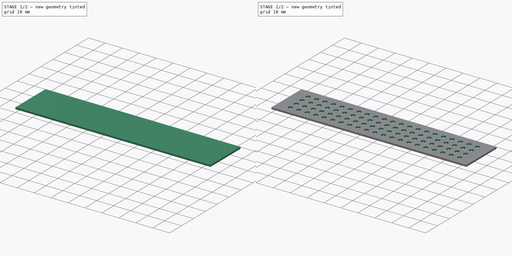
[diagram: build sequence overview — one tinted view per stage of 2, left to right]
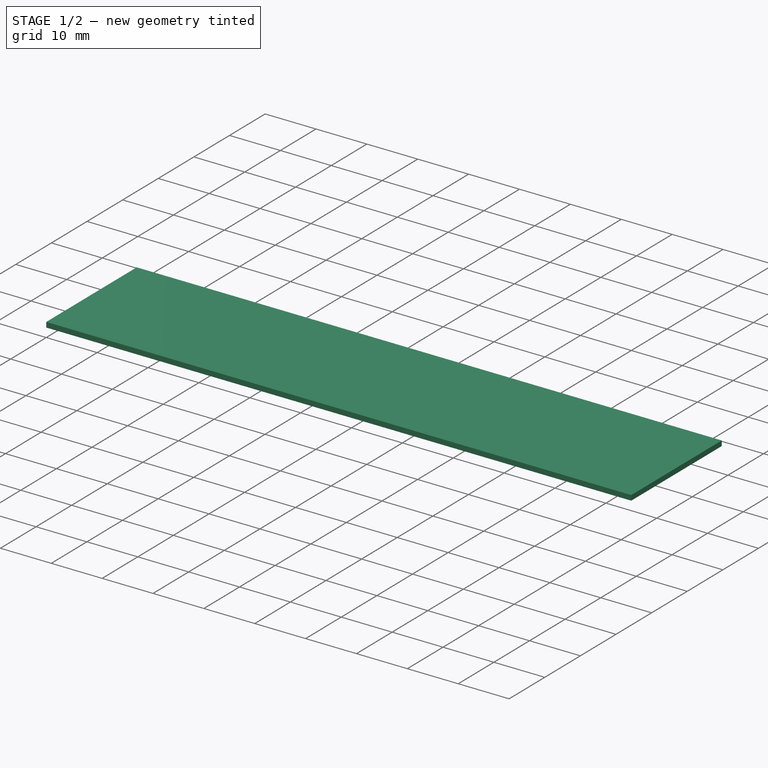
[diagram: stage 1 of 2 — iso view after this stage's code; geometry added in this stage tinted green]
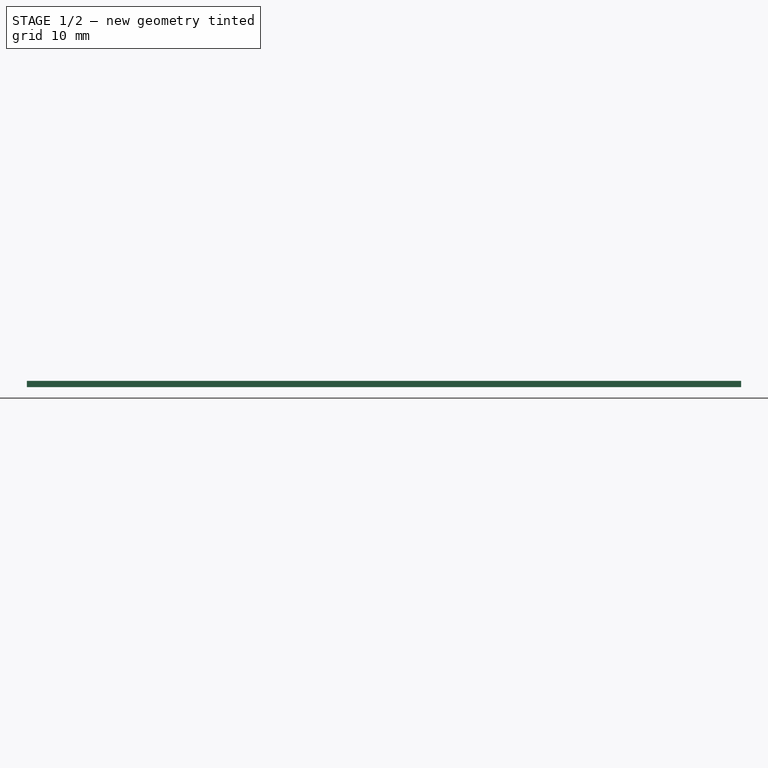
[diagram: stage 1 of 2 — front view after this stage's code; geometry added in this stage tinted green]
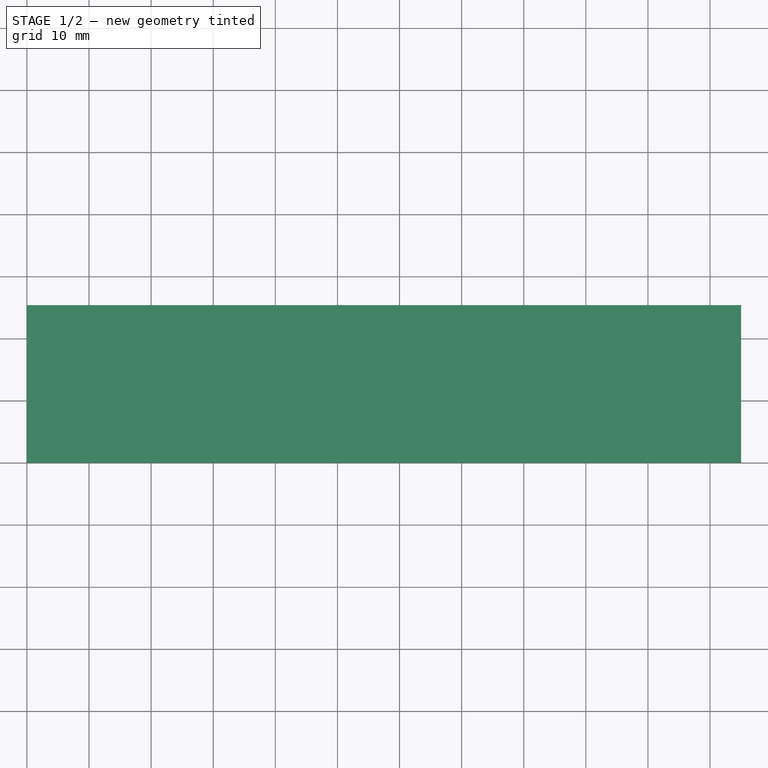
[diagram: stage 1 of 2 — top view after this stage's code; geometry added in this stage tinted green]
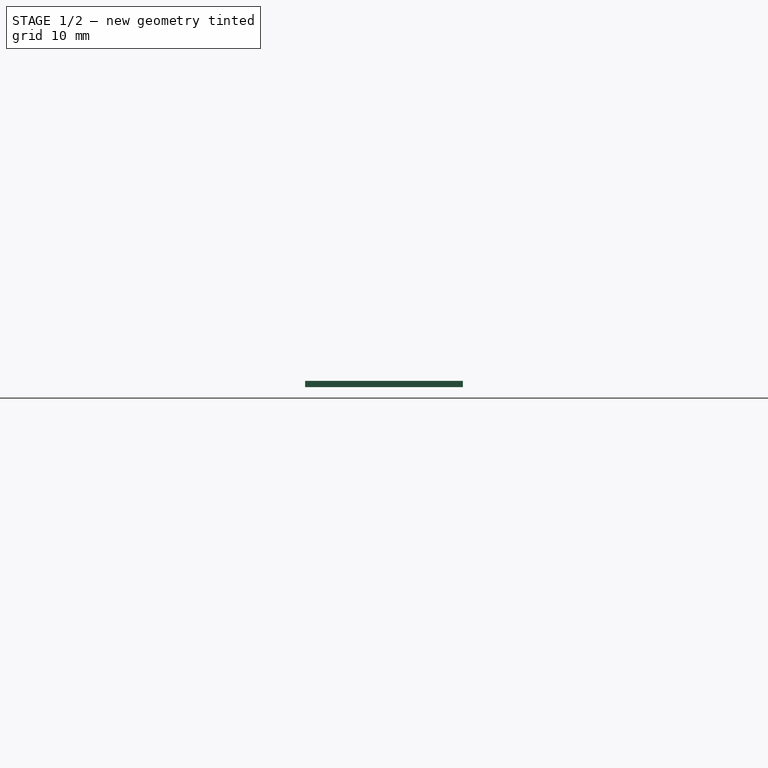
[diagram: stage 1 of 2 — right view after this stage's code; geometry added in this stage tinted green]
FCSTD DOCUMENT  (FreeCAD 0.17R13522 (Git))
Label: SC1025
License: All rights reserved
LicenseURL: http://en.wikipedia.org/wiki/All_rights_reserved
objects: Part::Box×1, PartDesign::FeatureBase×1, Sketcher::SketchObject×1, PartDesign::Pocket×1, PartDesign::Body×1
note: 6 computed .brp shape members not serialized (recipe doc carries the construction recipe); baked Part::Feature solids carry a one-line shape summary decoded from their .brp

FEATURE [Part::Box] Box  label="Cube"
  AttacherType = Attacher::AttachEngine3D
  Height = 1
  Length = 115
  Width = 25.4
FEATURE [PartDesign::FeatureBase] BaseFeature
  BaseFeature = -> Box
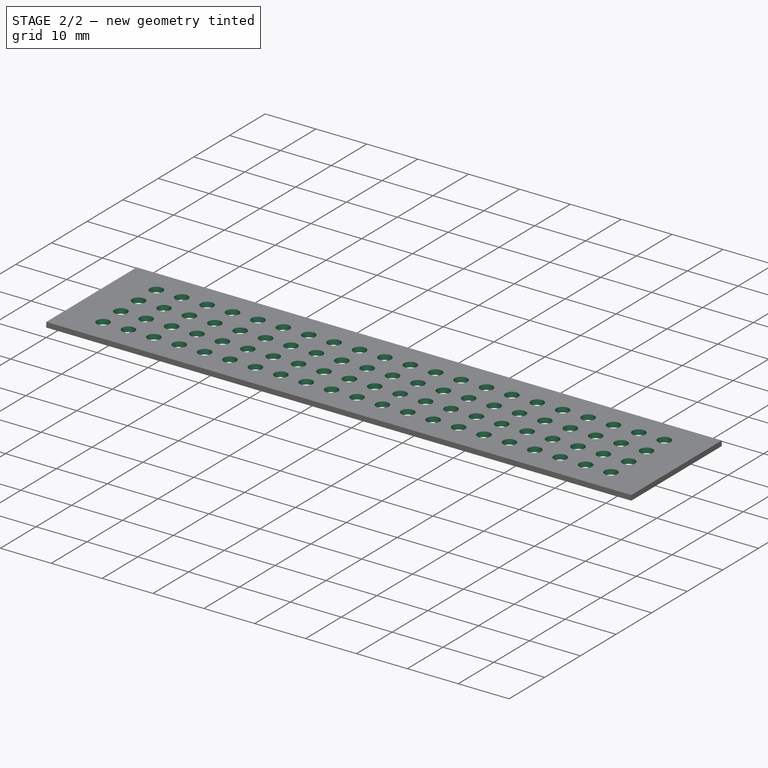
[diagram: stage 2 of 2 — iso view after this stage's code; geometry added in this stage tinted green]
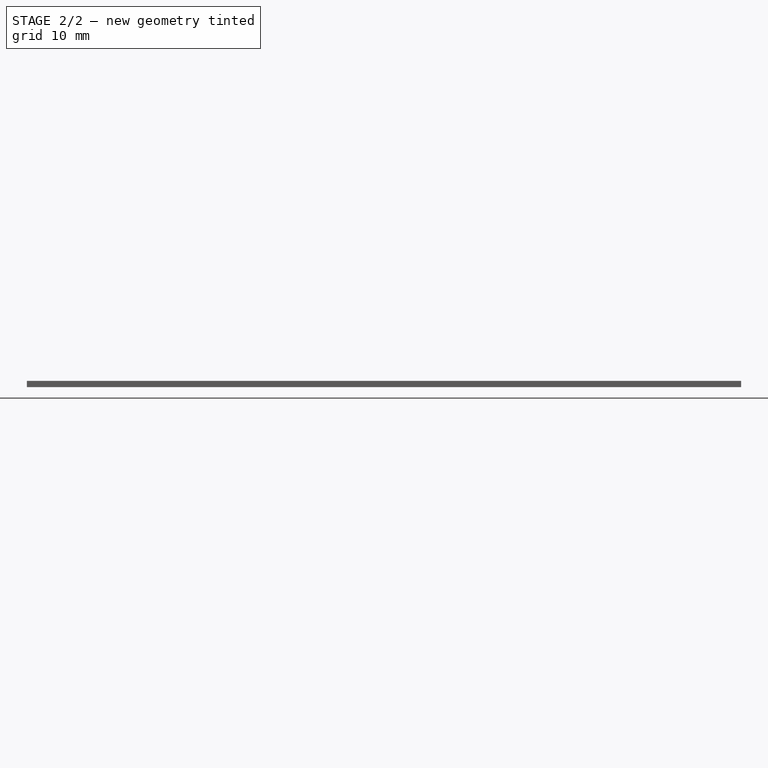
[diagram: stage 2 of 2 — front view after this stage's code; geometry added in this stage tinted green]
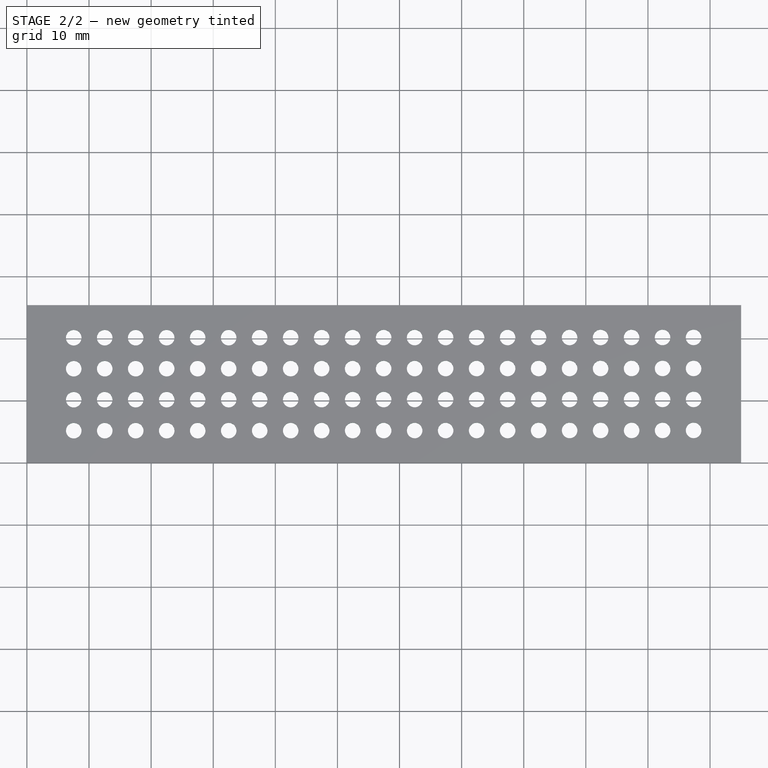
[diagram: stage 2 of 2 — top view after this stage's code; geometry added in this stage tinted green]
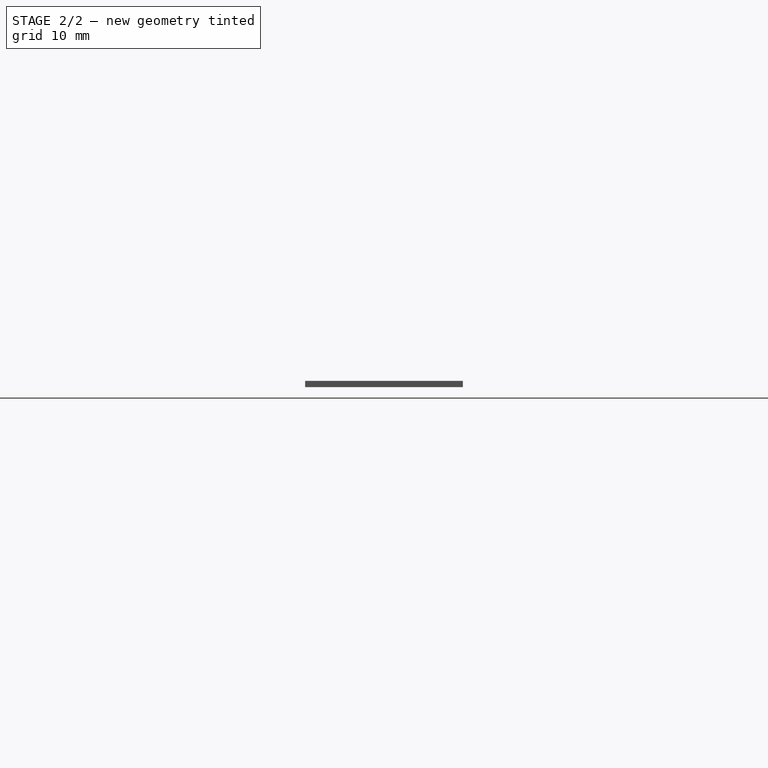
[diagram: stage 2 of 2 — right view after this stage's code; geometry added in this stage tinted green]
FEATURE [Sketcher::SketchObject] Sketch
  MapMode = 5
  Placement = pos=(0,0,1) rot=(0,0,1;0rad)
  Support = -> [BaseFeature]
  sketch-geometry (167):
    g0: Circle CenterX=7.53624 CenterY=20.1483 CenterZ=0 NormalX=0 NormalY=0 NormalZ=1 AngleXU=0 Radius=1.25
    g1: Circle CenterX=12.5267 CenterY=20.1507 CenterZ=0 NormalX=0 NormalY=0 NormalZ=1 AngleXU=0 Radius=1.25
    g2: LineSegment [constr] StartX=7.53624 StartY=20.1483 StartZ=0 EndX=12.5267 EndY=20.1507 EndZ=0
    g3: Circle CenterX=17.5171 CenterY=20.1531 CenterZ=0 NormalX=0 NormalY=0 NormalZ=1 AngleXU=0 Radius=1.25
    g4: LineSegment [constr] StartX=12.5267 StartY=20.1507 StartZ=0 EndX=17.5171 EndY=20.1531 EndZ=0
    g5: Circle CenterX=22.5075 CenterY=20.1554 CenterZ=0 NormalX=0 NormalY=0 NormalZ=1 AngleXU=0 Radius=1.25
    g6: LineSegment [constr] StartX=17.5171 StartY=20.1531 StartZ=0 EndX=22.5075 EndY=20.1554 EndZ=0
    g7: Circle CenterX=27.4979 CenterY=20.1578 CenterZ=0 NormalX=0 NormalY=0 NormalZ=1 AngleXU=0 Radius=1.25
    g8: LineSegment [constr] StartX=22.5075 StartY=20.1554 StartZ=0 EndX=27.4979 EndY=20.1578 EndZ=0
    g9: Circle CenterX=32.4883 CenterY=20.1602 CenterZ=0 NormalX=0 NormalY=0 NormalZ=1 AngleXU=0 Radius=1.25
    g10: LineSegment [constr] StartX=27.4979 StartY=20.1578 StartZ=0 EndX=32.4883 EndY=20.1602 EndZ=0
    g11: Circle CenterX=37.4787 CenterY=20.1626 CenterZ=0 NormalX=0 NormalY=0 NormalZ=1 AngleXU=0 Radius=1.25
    g12: LineSegment [constr] StartX=32.4883 StartY=20.1602 StartZ=0 EndX=37.4787 EndY=20.1626 EndZ=0
    g13: Circle CenterX=42.4691 CenterY=20.1649 CenterZ=0 NormalX=0 NormalY=0 NormalZ=1 AngleXU=0 Radius=1.25
    g14: LineSegment [constr] StartX=37.4787 StartY=20.1626 StartZ=0 EndX=42.4691 EndY=20.1649 EndZ=0
    g15: Circle CenterX=47.4595 CenterY=20.1673 CenterZ=0 NormalX=0 NormalY=0 NormalZ=1 AngleXU=0 Radius=1.25
    g16: LineSegment [constr] StartX=42.4691 StartY=20.1649 StartZ=0 EndX=47.4595 EndY=20.1673 EndZ=0
    g17: Circle CenterX=52.4499 CenterY=20.1697 CenterZ=0 NormalX=0 NormalY=0 NormalZ=1 AngleXU=0 Radius=1.25
    g18: LineSegment [constr] StartX=47.4595 StartY=20.1673 StartZ=0 EndX=52.4499 EndY=20.1697 EndZ=0
    g19: Circle CenterX=57.4403 CenterY=20.172 CenterZ=0 NormalX=0 NormalY=0 NormalZ=1 AngleXU=0 Radius=1.25
    g20: LineSegment [constr] StartX=52.4499 StartY=20.1697 StartZ=0 EndX=57.4403 EndY=20.172 EndZ=0
    g21: Circle CenterX=62.4308 CenterY=20.1744 CenterZ=0 NormalX=0 NormalY=0 NormalZ=1 AngleXU=0 Radius=1.25
    g22: LineSegment [constr] StartX=57.4403 StartY=20.172 StartZ=0 EndX=62.4308 EndY=20.1744 EndZ=0
    g23: Circle CenterX=67.4212 CenterY=20.1768 CenterZ=0 NormalX=0 NormalY=0 NormalZ=1 AngleXU=0 Radius=1.25
    g24: LineSegment [constr] StartX=62.4308 StartY=20.1744 StartZ=0 EndX=67.4212 EndY=20.1768 EndZ=0
    g25: Circle CenterX=72.4116 CenterY=20.1792 CenterZ=0 NormalX=0 NormalY=0 NormalZ=1 AngleXU=0 Radius=1.25
    g26: LineSegment [constr] StartX=67.4212 StartY=20.1768 StartZ=0 EndX=72.4116 EndY=20.1792 EndZ=0
    g27: Circle CenterX=77.402 CenterY=20.1815 CenterZ=0 NormalX=0 NormalY=0 NormalZ=1 AngleXU=0 Radius=1.25
    g28: LineSegment [constr] StartX=72.4116 StartY=20.1792 StartZ=0 EndX=77.402 EndY=20.1815 EndZ=0
    g29: Circle CenterX=82.3924 CenterY=20.1839 CenterZ=0 NormalX=0 NormalY=0 NormalZ=1 AngleXU=0 Radius=1.25
    g30: LineSegment [constr] StartX=77.402 StartY=20.1815 StartZ=0 EndX=82.3924 EndY=20.1839 EndZ=0
    g31: Circle CenterX=87.3828 CenterY=20.1863 CenterZ=0 NormalX=0 NormalY=0 NormalZ=1 AngleXU=0 Radius=1.25
    g32: LineSegment [constr] StartX=82.3924 StartY=20.1839 StartZ=0 EndX=87.3828 EndY=20.1863 EndZ=0
    g33: Circle CenterX=92.3732 CenterY=20.1886 CenterZ=0 NormalX=0 NormalY=0 NormalZ=1 AngleXU=0 Radius=1.25
    g34: LineSegment [constr] StartX=87.3828 StartY=20.1863 StartZ=0 EndX=92.3732 EndY=20.1886 EndZ=0
    g35: Circle CenterX=97.3636 CenterY=20.191 CenterZ=0 NormalX=0 NormalY=0 NormalZ=1 AngleXU=0 Radius=1.25
    g36: LineSegment [constr] StartX=92.3732 StartY=20.1886 StartZ=0 EndX=97.3636 EndY=20.191 EndZ=0
    g37: Circle CenterX=102.354 CenterY=20.1934 CenterZ=0 NormalX=0 NormalY=0 NormalZ=1 AngleXU=0 Radius=1.25
    g38: LineSegment [constr] StartX=97.3636 StartY=20.191 StartZ=0 EndX=102.354 EndY=20.1934 EndZ=0
    g39: Circle CenterX=107.344 CenterY=20.1958 CenterZ=0 NormalX=0 NormalY=0 NormalZ=1 AngleXU=0 Radius=1.25
    g40: LineSegment [constr] StartX=102.354 StartY=20.1934 StartZ=0 EndX=107.344 EndY=20.1958 EndZ=0
    g41: Circle CenterX=7.53862 CenterY=15.1579 CenterZ=0 NormalX=0 NormalY=0 NormalZ=1 AngleXU=0 Radius=1.25
    g42: LineSegment [constr] StartX=7.53624 StartY=20.1483 StartZ=0 EndX=7.53862 EndY=15.1579 EndZ=0
    g43: Circle CenterX=12.529 CenterY=15.1603 CenterZ=0 NormalX=0 NormalY=0 NormalZ=1 AngleXU=0 Radius=1.25
    g44: LineSegment [constr] StartX=7.53862 StartY=15.1579 StartZ=0 EndX=12.529 EndY=15.1603 EndZ=0
    g45: Circle CenterX=17.5194 CenterY=15.1627 CenterZ=0 NormalX=0 NormalY=0 NormalZ=1 AngleXU=0 Radius=1.25
    g46: LineSegment [constr] StartX=12.529 StartY=15.1603 StartZ=0 EndX=17.5194 EndY=15.1627 EndZ=0
    g47: Circle CenterX=22.5098 CenterY=15.165 CenterZ=0 NormalX=0 NormalY=0 NormalZ=1 AngleXU=0 Radius=1.25
    g48: LineSegment [constr] StartX=17.5194 StartY=15.1627 StartZ=0 EndX=22.5098 EndY=15.165 EndZ=0
    g49: Circle CenterX=27.5003 CenterY=15.1674 CenterZ=0 NormalX=0 NormalY=0 NormalZ=1 AngleXU=0 Radius=1.25
    g50: LineSegment [constr] StartX=22.5098 StartY=15.165 StartZ=0 EndX=27.5003 EndY=15.1674 EndZ=0
    g51: Circle CenterX=32.4907 CenterY=15.1698 CenterZ=0 NormalX=0 NormalY=0 NormalZ=1 AngleXU=0 Radius=1.25
    g52: LineSegment [constr] StartX=27.5003 StartY=15.1674 StartZ=0 EndX=32.4907 EndY=15.1698 EndZ=0
    g53: Circle CenterX=37.4811 CenterY=15.1721 CenterZ=0 NormalX=0 NormalY=0 NormalZ=1 AngleXU=0 Radius=1.25
    g54: LineSegment [constr] StartX=32.4907 StartY=15.1698 StartZ=0 EndX=37.4811 EndY=15.1721 EndZ=0
    g55: Circle CenterX=42.4715 CenterY=15.1745 CenterZ=0 NormalX=0 NormalY=0 NormalZ=1 AngleXU=0 Radius=1.25
    g56: LineSegment [constr] StartX=37.4811 StartY=15.1721 StartZ=0 EndX=42.4715 EndY=15.1745 EndZ=0
    g57: Circle CenterX=47.4619 CenterY=15.1769 CenterZ=0 NormalX=0 NormalY=0 NormalZ=1 AngleXU=0 Radius=1.25
    g58: LineSegment [constr] StartX=42.4715 StartY=15.1745 StartZ=0 EndX=47.4619 EndY=15.1769 EndZ=0
    g59: Circle CenterX=52.4523 CenterY=15.1793 CenterZ=0 NormalX=0 NormalY=0 NormalZ=1 AngleXU=0 Radius=1.25
    g60: LineSegment [constr] StartX=47.4619 StartY=15.1769 StartZ=0 EndX=52.4523 EndY=15.1793 EndZ=0
    g61: Circle CenterX=57.4427 CenterY=15.1816 CenterZ=0 NormalX=0 NormalY=0 NormalZ=1 AngleXU=0 Radius=1.25
    g62: LineSegment [constr] StartX=52.4523 StartY=15.1793 StartZ=0 EndX=57.4427 EndY=15.1816 EndZ=0
    g63: Circle CenterX=62.4331 CenterY=15.184 CenterZ=0 NormalX=0 NormalY=0 NormalZ=1 AngleXU=0 Radius=1.25
    g64: LineSegment [constr] StartX=57.4427 StartY=15.1816 StartZ=0 EndX=62.4331 EndY=15.184 EndZ=0
    g65: Circle CenterX=67.4235 CenterY=15.1864 CenterZ=0 NormalX=0 NormalY=0 NormalZ=1 AngleXU=0 Radius=1.25
    g66: LineSegment [constr] StartX=62.4331 StartY=15.184 StartZ=0 EndX=67.4235 EndY=15.1864 EndZ=0
    g67: Circle CenterX=72.4139 CenterY=15.1887 CenterZ=0 NormalX=0 NormalY=0 NormalZ=1 AngleXU=0 Radius=1.25
    g68: LineSegment [constr] StartX=67.4235 StartY=15.1864 StartZ=0 EndX=72.4139 EndY=15.1887 EndZ=0
    g69: Circle CenterX=77.4044 CenterY=15.1911 CenterZ=0 NormalX=0 NormalY=0 NormalZ=1 AngleXU=0 Radius=1.25
    g70: LineSegment [constr] StartX=72.4139 StartY=15.1887 StartZ=0 EndX=77.4044 EndY=15.1911 EndZ=0
    g71: Circle CenterX=82.3948 CenterY=15.1935 CenterZ=0 NormalX=0 NormalY=0 NormalZ=1 AngleXU=0 Radius=1.25
    g72: LineSegment [constr] StartX=77.4044 StartY=15.1911 StartZ=0 EndX=82.3948 EndY=15.1935 EndZ=0
    g73: Circle CenterX=87.3852 CenterY=15.1959 CenterZ=0 NormalX=0 NormalY=0 NormalZ=1 AngleXU=0 Radius=1.25
    g74: LineSegment [constr] StartX=82.3948 StartY=15.1935 StartZ=0 EndX=87.3852 EndY=15.1959 EndZ=0
    g75: Circle CenterX=92.3756 CenterY=15.1982 CenterZ=0 NormalX=0 NormalY=0 NormalZ=1 AngleXU=0 Radius=1.25
    g76: LineSegment [constr] StartX=87.3852 StartY=15.1959 StartZ=0 EndX=92.3756 EndY=15.1982 EndZ=0
    g77: Circle CenterX=97.366 CenterY=15.2006 CenterZ=0 NormalX=0 NormalY=0 NormalZ=1 AngleXU=0 Radius=1.25
    g78: LineSegment [constr] StartX=92.3756 StartY=15.1982 StartZ=0 EndX=97.366 EndY=15.2006 EndZ=0
    g79: Circle CenterX=102.356 CenterY=15.203 CenterZ=0 NormalX=0 NormalY=0 NormalZ=1 AngleXU=0 Radius=1.25
    g80: LineSegment [constr] StartX=97.366 StartY=15.2006 StartZ=0 EndX=102.356 EndY=15.203 EndZ=0
    g81: Circle CenterX=107.347 CenterY=15.2054 CenterZ=0 NormalX=0 NormalY=0 NormalZ=1 AngleXU=0 Radius=1.25
    g82: LineSegment [constr] StartX=102.356 StartY=15.203 StartZ=0 EndX=107.347 EndY=15.2054 EndZ=0
    g83: Circle CenterX=7.54099 CenterY=10.1675 CenterZ=0 NormalX=0 NormalY=0 NormalZ=1 AngleXU=0 Radius=1.25
    g84: LineSegment [constr] StartX=7.53862 StartY=15.1579 StartZ=0 EndX=7.54099 EndY=10.1675 EndZ=0
    g85: Circle CenterX=12.5314 CenterY=10.1699 CenterZ=0 NormalX=0 NormalY=0 NormalZ=1 AngleXU=0 Radius=1.25
    g86: LineSegment [constr] StartX=7.54099 StartY=10.1675 StartZ=0 EndX=12.5314 EndY=10.1699 EndZ=0
    g87: Circle CenterX=17.5218 CenterY=10.1722 CenterZ=0 NormalX=0 NormalY=0 NormalZ=1 AngleXU=0 Radius=1.25
    g88: LineSegment [constr] StartX=12.5314 StartY=10.1699 StartZ=0 EndX=17.5218 EndY=10.1722 EndZ=0
    g89: Circle CenterX=22.5122 CenterY=10.1746 CenterZ=0 NormalX=0 NormalY=0 NormalZ=1 AngleXU=0 Radius=1.25
    g90: LineSegment [constr] StartX=17.5218 StartY=10.1722 StartZ=0 EndX=22.5122 EndY=10.1746 EndZ=0
    g91: Circle CenterX=27.5026 CenterY=10.177 CenterZ=0 NormalX=0 NormalY=0 NormalZ=1 AngleXU=0 Radius=1.25
    g92: LineSegment [constr] StartX=22.5122 StartY=10.1746 StartZ=0 EndX=27.5026 EndY=10.177 EndZ=0
    g93: Circle CenterX=32.493 CenterY=10.1794 CenterZ=0 NormalX=0 NormalY=0 NormalZ=1 AngleXU=0 Radius=1.25
    g94: LineSegment [constr] StartX=27.5026 StartY=10.177 StartZ=0 EndX=32.493 EndY=10.1794 EndZ=0
    g95: Circle CenterX=37.4834 CenterY=10.1817 CenterZ=0 NormalX=0 NormalY=0 NormalZ=1 AngleXU=0 Radius=1.25
    g96: LineSegment [constr] StartX=32.493 StartY=10.1794 StartZ=0 EndX=37.4834 EndY=10.1817 EndZ=0
    g97: Circle CenterX=42.4739 CenterY=10.1841 CenterZ=0 NormalX=0 NormalY=0 NormalZ=1 AngleXU=0 Radius=1.25
    g98: LineSegment [constr] StartX=37.4834 StartY=10.1817 StartZ=0 EndX=42.4739 EndY=10.1841 EndZ=0
    g99: Circle CenterX=47.4643 CenterY=10.1865 CenterZ=0 NormalX=0 NormalY=0 NormalZ=1 AngleXU=0 Radius=1.25
    g100: LineSegment [constr] StartX=42.4739 StartY=10.1841 StartZ=0 EndX=47.4643 EndY=10.1865 EndZ=0
    g101: Circle CenterX=52.4547 CenterY=10.1888 CenterZ=0 NormalX=0 NormalY=0 NormalZ=1 AngleXU=0 Radius=1.25
    g102: LineSegment [constr] StartX=47.4643 StartY=10.1865 StartZ=0 EndX=52.4547 EndY=10.1888 EndZ=0
    g103: Circle CenterX=57.4451 CenterY=10.1912 CenterZ=0 NormalX=0 NormalY=0 NormalZ=1 AngleXU=0 Radius=1.25
    g104: LineSegment [constr] StartX=52.4547 StartY=10.1888 StartZ=0 EndX=57.4451 EndY=10.1912 EndZ=0
    g105: Circle CenterX=62.4355 CenterY=10.1936 CenterZ=0 NormalX=0 NormalY=0 NormalZ=1 AngleXU=0 Radius=1.25
    g106: LineSegment [constr] StartX=57.4451 StartY=10.1912 StartZ=0 EndX=62.4355 EndY=10.1936 EndZ=0
    g107: Circle CenterX=67.4259 CenterY=10.196 CenterZ=0 NormalX=0 NormalY=0 NormalZ=1 AngleXU=0 Radius=1.25
    g108: LineSegment [constr] StartX=62.4355 StartY=10.1936 StartZ=0 EndX=67.4259 EndY=10.196 EndZ=0
    g109: Circle CenterX=72.4163 CenterY=10.1983 CenterZ=0 NormalX=0 NormalY=0 NormalZ=1 AngleXU=0 Radius=1.25
    g110: LineSegment [constr] StartX=67.4259 StartY=10.196 StartZ=0 EndX=72.4163 EndY=10.1983 EndZ=0
    g111: Circle CenterX=77.4067 CenterY=10.2007 CenterZ=0 NormalX=0 NormalY=0 NormalZ=1 AngleXU=0 Radius=1.25
    g112: LineSegment [constr] StartX=72.4163 StartY=10.1983 StartZ=0 EndX=77.4067 EndY=10.2007 EndZ=0
    g113: Circle CenterX=82.3971 CenterY=10.2031 CenterZ=0 NormalX=0 NormalY=0 NormalZ=1 AngleXU=0 Radius=1.25
    g114: LineSegment [constr] StartX=77.4067 StartY=10.2007 StartZ=0 EndX=82.3971 EndY=10.2031 EndZ=0
    g115: Circle CenterX=87.3875 CenterY=10.2055 CenterZ=0 NormalX=0 NormalY=0 NormalZ=1 AngleXU=0 Radius=1.25
    g116: LineSegment [constr] StartX=82.3971 StartY=10.2031 StartZ=0 EndX=87.3875 EndY=10.2055 EndZ=0
    g117: Circle CenterX=92.378 CenterY=10.2078 CenterZ=0 NormalX=0 NormalY=0 NormalZ=1 AngleXU=0 Radius=1.25
    g118: LineSegment [constr] StartX=87.3875 StartY=10.2055 StartZ=0 EndX=92.378 EndY=10.2078 EndZ=0
    g119: Circle CenterX=97.3684 CenterY=10.2102 CenterZ=0 NormalX=0 NormalY=0 NormalZ=1 AngleXU=0 Radius=1.25
    g120: LineSegment [constr] StartX=92.378 StartY=10.2078 StartZ=0 EndX=97.3684 EndY=10.2102 EndZ=0
    g121: Circle CenterX=102.359 CenterY=10.2126 CenterZ=0 NormalX=0 NormalY=0 NormalZ=1 AngleXU=0 Radius=1.25
    g122: LineSegment [constr] StartX=97.3684 StartY=10.2102 StartZ=0 EndX=102.359 EndY=10.2126 EndZ=0
    g123: Circle CenterX=107.349 CenterY=10.2149 CenterZ=0 NormalX=0 NormalY=0 NormalZ=1 AngleXU=0 Radius=1.25
    g124: LineSegment [constr] StartX=102.359 StartY=10.2126 StartZ=0 EndX=107.349 EndY=10.2149 EndZ=0
    g125: Circle CenterX=7.54336 CenterY=5.17709 CenterZ=0 NormalX=0 NormalY=0 NormalZ=1 AngleXU=0 Radius=1.25
    g126: LineSegment [constr] StartX=7.54099 StartY=10.1675 StartZ=0 EndX=7.54336 EndY=5.17709 EndZ=0
    g127: Circle CenterX=12.5338 CenterY=5.17946 CenterZ=0 NormalX=0 NormalY=0 NormalZ=1 AngleXU=0 Radius=1.25
    g128: LineSegment [constr] StartX=7.54336 StartY=5.17709 StartZ=0 EndX=12.5338 EndY=5.17946 EndZ=0
    g129: Circle CenterX=17.5242 CenterY=5.18184 CenterZ=0 NormalX=0 NormalY=0 NormalZ=1 AngleXU=0 Radius=1.25
    g130: LineSegment [constr] StartX=12.5338 StartY=5.17946 StartZ=0 EndX=17.5242 EndY=5.18184 EndZ=0
    g131: Circle CenterX=22.5146 CenterY=5.18421 CenterZ=0 NormalX=0 NormalY=0 NormalZ=1 AngleXU=0 Radius=1.25
    g132: LineSegment [constr] StartX=17.5242 StartY=5.18184 StartZ=0 EndX=22.5146 EndY=5.18421 EndZ=0
    g133: Circle CenterX=27.505 CenterY=5.18658 CenterZ=0 NormalX=0 NormalY=0 NormalZ=1 AngleXU=0 Radius=1.25
    g134: LineSegment [constr] StartX=22.5146 StartY=5.18421 StartZ=0 EndX=27.505 EndY=5.18658 EndZ=0
    g135: Circle CenterX=32.4954 CenterY=5.18895 CenterZ=0 NormalX=0 NormalY=0 NormalZ=1 AngleXU=0 Radius=1.25
    g136: LineSegment [constr] StartX=27.505 StartY=5.18658 StartZ=0 EndX=32.4954 EndY=5.18895 EndZ=0
    g137: Circle CenterX=37.4858 CenterY=5.19132 CenterZ=0 NormalX=0 NormalY=0 NormalZ=1 AngleXU=0 Radius=1.25
    g138: LineSegment [constr] StartX=32.4954 StartY=5.18895 StartZ=0 EndX=37.4858 EndY=5.19132 EndZ=0
    g139: Circle CenterX=42.4762 CenterY=5.19369 CenterZ=0 NormalX=0 NormalY=0 NormalZ=1 AngleXU=0 Radius=1.25
    g140: LineSegment [constr] StartX=37.4858 StartY=5.19132 StartZ=0 EndX=42.4762 EndY=5.19369 EndZ=0
    g141: Circle CenterX=47.4666 CenterY=5.19607 CenterZ=0 NormalX=0 NormalY=0 NormalZ=1 AngleXU=0 Radius=1.25
    g142: LineSegment [constr] StartX=42.4762 StartY=5.19369 StartZ=0 EndX=47.4666 EndY=5.19607 EndZ=0
    g143: Circle CenterX=52.4571 CenterY=5.19844 CenterZ=0 NormalX=0 NormalY=0 NormalZ=1 AngleXU=0 Radius=1.25
    g144: LineSegment [constr] StartX=47.4666 StartY=5.19607 StartZ=0 EndX=52.4571 EndY=5.19844 EndZ=0
    g145: Circle CenterX=57.4475 CenterY=5.20081 CenterZ=0 NormalX=0 NormalY=0 NormalZ=1 AngleXU=0 Radius=1.25
    g146: LineSegment [constr] StartX=52.4571 StartY=5.19844 StartZ=0 EndX=57.4475 EndY=5.20081 EndZ=0
    g147: Circle CenterX=62.4379 CenterY=5.20318 CenterZ=0 NormalX=0 NormalY=0 NormalZ=1 AngleXU=0 Radius=1.25
    g148: LineSegment [constr] StartX=57.4475 StartY=5.20081 StartZ=0 EndX=62.4379 EndY=5.20318 EndZ=0
    g149: Circle CenterX=67.4283 CenterY=5.20556 CenterZ=0 NormalX=0 NormalY=0 NormalZ=1 AngleXU=0 Radius=1.25
    g150: LineSegment [constr] StartX=62.4379 StartY=5.20318 StartZ=0 EndX=67.4283 EndY=5.20556 EndZ=0
    g151: Circle CenterX=72.4187 CenterY=5.20793 CenterZ=0 NormalX=0 NormalY=0 NormalZ=1 AngleXU=0 Radius=1.25
    g152: LineSegment [constr] StartX=67.4283 StartY=5.20556 StartZ=0 EndX=72.4187 EndY=5.20793 EndZ=0
    g153: Circle CenterX=77.4091 CenterY=5.2103 CenterZ=0 NormalX=0 NormalY=0 NormalZ=1 AngleXU=0 Radius=1.25
    g154: LineSegment [constr] StartX=72.4187 StartY=5.20793 StartZ=0 EndX=77.4091 EndY=5.2103 EndZ=0
    g155: Circle CenterX=82.3995 CenterY=5.21267 CenterZ=0 NormalX=0 NormalY=0 NormalZ=1 AngleXU=0 Radius=1.25
    g156: LineSegment [constr] StartX=77.4091 StartY=5.2103 StartZ=0 EndX=82.3995 EndY=5.21267 EndZ=0
    g157: Circle CenterX=87.3899 CenterY=5.21504 CenterZ=0 NormalX=0 NormalY=0 NormalZ=1 AngleXU=0 Radius=1.25
    g158: LineSegment [constr] StartX=82.3995 StartY=5.21267 StartZ=0 EndX=87.3899 EndY=5.21504 EndZ=0
    g159: Circle CenterX=92.3803 CenterY=5.21741 CenterZ=0 NormalX=0 NormalY=0 NormalZ=1 AngleXU=0 Radius=1.25
    g160: LineSegment [constr] StartX=87.3899 StartY=5.21504 StartZ=0 EndX=92.3803 EndY=5.21741 EndZ=0
    g161: Circle CenterX=97.3707 CenterY=5.21979 CenterZ=0 NormalX=0 NormalY=0 NormalZ=1 AngleXU=0 Radius=1.25
    g162: LineSegment [constr] StartX=92.3803 StartY=5.21741 StartZ=0 EndX=97.3707 EndY=5.21979 EndZ=0
    g163: Circle CenterX=102.361 CenterY=5.22216 CenterZ=0 NormalX=0 NormalY=0 NormalZ=1 AngleXU=0 Radius=1.25
    g164: LineSegment [constr] StartX=97.3707 StartY=5.21979 StartZ=0 EndX=102.361 EndY=5.22216 EndZ=0
    g165: Circle CenterX=107.352 CenterY=5.22453 CenterZ=0 NormalX=0 NormalY=0 NormalZ=1 AngleXU=0 Radius=1.25
    g166: LineSegment [constr] StartX=102.361 StartY=5.22216 StartZ=0 EndX=107.352 EndY=5.22453 EndZ=0
  constraints (416):
    c: Radius(g0) = 1.25
    c: Equal(g0,g1) = 1.25
    c: Coincident(g0,g2)
    c: Coincident(g1,g2)
    c: Distance(g2) = 4.99041
    c: Angle(g2) = 0.000475312
    c: Equal(g0,g3) = 1.25
    c: Coincident(g1,g4)
    c: Coincident(g3,g4)
    c: Equal(g2,g4)
    c: Parallel(g4,g2)
    c: Equal(g0,g5) = 1.25
    c: Coincident(g3,g6)
    c: Coincident(g5,g6)
    c: Equal(g2,g6)
    c: Parallel(g6,g2)
    c: Equal(g0,g7) = 1.25
    c: Coincident(g5,g8)
    c: Coincident(g7,g8)
    c: Equal(g2,g8)
    c: Parallel(g8,g2)
    c: Equal(g0,g9) = 1.25
    c: Coincident(g7,g10)
    c: Coincident(g9,g10)
    c: Equal(g2,g10)
    c: Parallel(g10,g2)
    c: Equal(g0,g11) = 1.25
    c: Coincident(g9,g12)
    c: Coincident(g11,g12)
    c: Equal(g2,g12)
    c: Parallel(g12,g2)
    c: Equal(g0,g13) = 1.25
    c: Coincident(g11,g14)
    c: Coincident(g13,g14)
    c: Equal(g2,g14)
    c: Parallel(g14,g2)
    c: Equal(g0,g15) = 1.25
    c: Coincident(g13,g16)
    c: Coincident(g15,g16)
    c: Equal(g2,g16)
    c: Parallel(g16,g2)
    c: Equal(g0,g17) = 1.25
    c: Coincident(g15,g18)
    c: Coincident(g17,g18)
    c: Equal(g2,g18)
    c: Parallel(g18,g2)
    c: Equal(g0,g19) = 1.25
    c: Coincident(g17,g20)
    c: Coincident(g19,g20)
    c: Equal(g2,g20)
    c: Parallel(g20,g2)
    c: Equal(g0,g21) = 1.25
    c: Coincident(g19,g22)
    c: Coincident(g21,g22)
    c: Equal(g2,g22)
    c: Parallel(g22,g2)
    c: Equal(g0,g23) = 1.25
    c: Coincident(g21,g24)
    c: Coincident(g23,g24)
    c: Equal(g2,g24)
    c: Parallel(g24,g2)
    c: Equal(g0,g25) = 1.25
    c: Coincident(g23,g26)
    c: Coincident(g25,g26)
    c: Equal(g2,g26)
    c: Parallel(g26,g2)
    c: Equal(g0,g27) = 1.25
    c: Coincident(g25,g28)
    c: Coincident(g27,g28)
    c: Equal(g2,g28)
    c: Parallel(g28,g2)
    c: Equal(g0,g29) = 1.25
    c: Coincident(g27,g30)
    c: Coincident(g29,g30)
    c: Equal(g2,g30)
    c: Parallel(g30,g2)
    c: Equal(g0,g31) = 1.25
    c: Coincident(g29,g32)
    c: Coincident(g31,g32)
    c: Equal(g2,g32)
    c: Parallel(g32,g2)
    c: Equal(g0,g33) = 1.25
    c: Coincident(g31,g34)
    c: Coincident(g33,g34)
    c: Equal(g2,g34)
    c: Parallel(g34,g2)
    c: Equal(g0,g35) = 1.25
    c: Coincident(g33,g36)
    c: Coincident(g35,g36)
    c: Equal(g2,g36)
    c: Parallel(g36,g2)
    c: Equal(g0,g37) = 1.25
    c: Coincident(g35,g38)
    c: Coincident(g37,g38)
    c: Equal(g2,g38)
    c: Parallel(g38,g2)
    c: Equal(g0,g39) = 1.25
    c: Coincident(g37,g40)
    c: Coincident(g39,g40)
    c: Equal(g2,g40)
    c: Parallel(g40,g2)
    c: Equal(g0,g41) = 1.25
    c: Coincident(g0,g42)
    c: Coincident(g41,g42)
    c: Equal(g42,g2)
    c: Perpendicular(g42,g2)
    c: Equal(g0,g43) = 1.25
    c: Coincident(g41,g44)
    c: Coincident(g43,g44)
    c: Equal(g2,g44)
    c: Parallel(g44,g2)
    c: Equal(g0,g45) = 1.25
    c: Coincident(g43,g46)
    c: Coincident(g45,g46)
    c: Equal(g2,g46)
    c: Parallel(g46,g2)
    c: Equal(g0,g47) = 1.25
    c: Coincident(g45,g48)
    c: Coincident(g47,g48)
    c: Equal(g2,g48)
    c: Parallel(g48,g2)
    c: Equal(g0,g49) = 1.25
    c: Coincident(g47,g50)
    c: Coincident(g49,g50)
    c: Equal(g2,g50)
    c: Parallel(g50,g2)
    c: Equal(g0,g51) = 1.25
    c: Coincident(g49,g52)
    c: Coincident(g51,g52)
    c: Equal(g2,g52)
    c: Parallel(g52,g2)
    c: Equal(g0,g53) = 1.25
    c: Coincident(g51,g54)
    c: Coincident(g53,g54)
    c: Equal(g2,g54)
    c: Parallel(g54,g2)
    c: Equal(g0,g55) = 1.25
    c: Coincident(g53,g56)
    c: Coincident(g55,g56)
    c: Equal(g2,g56)
    c: Parallel(g56,g2)
    c: Equal(g0,g57) = 1.25
    c: Coincident(g55,g58)
    c: Coincident(g57,g58)
    c: Equal(g2,g58)
    c: Parallel(g58,g2)
    c: Equal(g0,g59) = 1.25
    c: Coincident(g57,g60)
    c: Coincident(g59,g60)
    c: Equal(g2,g60)
    c: Parallel(g60,g2)
    c: Equal(g0,g61) = 1.25
    c: Coincident(g59,g62)
    c: Coincident(g61,g62)
    c: Equal(g2,g62)
    c: Parallel(g62,g2)
    c: Equal(g0,g63) = 1.25
    c: Coincident(g61,g64)
    c: Coincident(g63,g64)
    c: Equal(g2,g64)
    c: Parallel(g64,g2)
    c: Equal(g0,g65) = 1.25
    c: Coincident(g63,g66)
    c: Coincident(g65,g66)
    c: Equal(g2,g66)
    c: Parallel(g66,g2)
    c: Equal(g0,g67) = 1.25
    c: Coincident(g65,g68)
    c: Coincident(g67,g68)
    c: Equal(g2,g68)
    c: Parallel(g68,g2)
    c: Equal(g0,g69) = 1.25
    c: Coincident(g67,g70)
    c: Coincident(g69,g70)
    c: Equal(g2,g70)
    c: Parallel(g70,g2)
    c: Equal(g0,g71) = 1.25
    c: Coincident(g69,g72)
    c: Coincident(g71,g72)
    c: Equal(g2,g72)
    c: Parallel(g72,g2)
    c: Equal(g0,g73) = 1.25
    c: Coincident(g71,g74)
    c: Coincident(g73,g74)
    c: Equal(g2,g74)
    c: Parallel(g74,g2)
    c: Equal(g0,g75) = 1.25
    c: Coincident(g73,g76)
    c: Coincident(g75,g76)
    c: Equal(g2,g76)
    c: Parallel(g76,g2)
    c: Equal(g0,g77) = 1.25
    c: Coincident(g75,g78)
    c: Coincident(g77,g78)
    c: Equal(g2,g78)
    c: Parallel(g78,g2)
    c: Equal(g0,g79) = 1.25
    c: Coincident(g77,g80)
    c: Coincident(g79,g80)
    c: Equal(g2,g80)
    c: Parallel(g80,g2)
    c: Equal(g0,g81) = 1.25
    c: Coincident(g79,g82)
    c: Coincident(g81,g82)
    c: Equal(g2,g82)
    c: Parallel(g82,g2)
    c: Equal(g0,g83) = 1.25
    c: Coincident(g41,g84)
    c: Coincident(g83,g84)
    c: Equal(g42,g84)
    c: Perpendicular(g84,g2)
    c: Equal(g0,g85) = 1.25
    c: Coincident(g83,g86)
    c: Coincident(g85,g86)
    c: Equal(g2,g86)
    c: Parallel(g86,g2)
    c: Equal(g0,g87) = 1.25
    c: Coincident(g85,g88)
    c: Coincident(g87,g88)
    c: Equal(g2,g88)
    c: Parallel(g88,g2)
    c: Equal(g0,g89) = 1.25
    c: Coincident(g87,g90)
    c: Coincident(g89,g90)
    c: Equal(g2,g90)
    c: Parallel(g90,g2)
    c: Equal(g0,g91) = 1.25
    c: Coincident(g89,g92)
    c: Coincident(g91,g92)
    c: Equal(g2,g92)
    c: Parallel(g92,g2)
    c: Equal(g0,g93) = 1.25
    c: Coincident(g91,g94)
    c: Coincident(g93,g94)
    c: Equal(g2,g94)
    c: Parallel(g94,g2)
    c: Equal(g0,g95) = 1.25
    c: Coincident(g93,g96)
    c: Coincident(g95,g96)
    c: Equal(g2,g96)
    c: Parallel(g96,g2)
    c: Equal(g0,g97) = 1.25
    c: Coincident(g95,g98)
    c: Coincident(g97,g98)
    c: Equal(g2,g98)
    c: Parallel(g98,g2)
    c: Equal(g0,g99) = 1.25
    c: Coincident(g97,g100)
    c: Coincident(g99,g100)
    c: Equal(g2,g100)
    c: Parallel(g100,g2)
    c: Equal(g0,g101) = 1.25
    c: Coincident(g99,g102)
    c: Coincident(g101,g102)
    c: Equal(g2,g102)
    c: Parallel(g102,g2)
    c: Equal(g0,g103) = 1.25
    c: Coincident(g101,g104)
    c: Coincident(g103,g104)
    c: Equal(g2,g104)
    c: Parallel(g104,g2)
    c: Equal(g0,g105) = 1.25
    c: Coincident(g103,g106)
    c: Coincident(g105,g106)
    c: Equal(g2,g106)
    c: Parallel(g106,g2)
    c: Equal(g0,g107) = 1.25
    c: Coincident(g105,g108)
    c: Coincident(g107,g108)
    c: Equal(g2,g108)
    c: Parallel(g108,g2)
    c: Equal(g0,g109) = 1.25
    c: Coincident(g107,g110)
    c: Coincident(g109,g110)
    c: Equal(g2,g110)
    c: Parallel(g110,g2)
    c: Equal(g0,g111) = 1.25
    c: Coincident(g109,g112)
    c: Coincident(g111,g112)
    c: Equal(g2,g112)
    c: Parallel(g112,g2)
    c: Equal(g0,g113) = 1.25
    c: Coincident(g111,g114)
    c: Coincident(g113,g114)
    c: Equal(g2,g114)
    c: Parallel(g114,g2)
    c: Equal(g0,g115) = 1.25
    c: Coincident(g113,g116)
    c: Coincident(g115,g116)
    c: Equal(g2,g116)
    c: Parallel(g116,g2)
    c: Equal(g0,g117) = 1.25
    c: Coincident(g115,g118)
    c: Coincident(g117,g118)
    c: Equal(g2,g118)
    c: Parallel(g118,g2)
    c: Equal(g0,g119) = 1.25
    c: Coincident(g117,g120)
    c: Coincident(g119,g120)
    c: Equal(g2,g120)
    c: Parallel(g120,g2)
    c: Equal(g0,g121) = 1.25
    c: Coincident(g119,g122)
    c: Coincident(g121,g122)
    c: Equal(g2,g122)
    c: Parallel(g122,g2)
    c: Equal(g0,g123) = 1.25
    c: Coincident(g121,g124)
    c: Coincident(g123,g124)
    c: Equal(g2,g124)
    c: Parallel(g124,g2)
    c: Equal(g0,g125) = 1.25
    c: Coincident(g83,g126)
    c: Coincident(g125,g126)
    c: Equal(g42,g126)
    c: Perpendicular(g126,g2)
    c: Equal(g0,g127) = 1.25
    c: Coincident(g125,g128)
    c: Coincident(g127,g128)
    c: Equal(g2,g128)
    c: Parallel(g128,g2)
    c: Equal(g0,g129) = 1.25
    c: Coincident(g127,g130)
    c: Coincident(g129,g130)
    c: Equal(g2,g130)
    c: Parallel(g130,g2)
    c: Equal(g0,g131) = 1.25
    c: Coincident(g129,g132)
    c: Coincident(g131,g132)
    c: Equal(g2,g132)
    c: Parallel(g132,g2)
    c: Equal(g0,g133) = 1.25
    c: Coincident(g131,g134)
    c: Coincident(g133,g134)
    c: Equal(g2,g134)
    c: Parallel(g134,g2)
    c: Equal(g0,g135) = 1.25
    c: Coincident(g133,g136)
    c: Coincident(g135,g136)
    c: Equal(g2,g136)
    c: Parallel(g136,g2)
    c: Equal(g0,g137) = 1.25
    c: Coincident(g135,g138)
    c: Coincident(g137,g138)
    c: Equal(g2,g138)
    c: Parallel(g138,g2)
    c: Equal(g0,g139) = 1.25
    c: Coincident(g137,g140)
    c: Coincident(g139,g140)
    c: Equal(g2,g140)
    c: Parallel(g140,g2)
    c: Equal(g0,g141) = 1.25
    c: Coincident(g139,g142)
    c: Coincident(g141,g142)
    c: Equal(g2,g142)
    c: Parallel(g142,g2)
    c: Equal(g0,g143) = 1.25
    c: Coincident(g141,g144)
    c: Coincident(g143,g144)
    c: Equal(g2,g144)
    c: Parallel(g144,g2)
    c: Equal(g0,g145) = 1.25
    c: Coincident(g143,g146)
    c: Coincident(g145,g146)
    c: Equal(g2,g146)
    c: Parallel(g146,g2)
    c: Equal(g0,g147) = 1.25
    c: Coincident(g145,g148)
    c: Coincident(g147,g148)
    c: Equal(g2,g148)
    c: Parallel(g148,g2)
    c: Equal(g0,g149) = 1.25
    c: Coincident(g147,g150)
    c: Coincident(g149,g150)
    c: Equal(g2,g150)
    c: Parallel(g150,g2)
    c: Equal(g0,g151) = 1.25
    c: Coincident(g149,g152)
    c: Coincident(g151,g152)
    c: Equal(g2,g152)
    c: Parallel(g152,g2)
    c: Equal(g0,g153) = 1.25
    c: Coincident(g151,g154)
    c: Coincident(g153,g154)
    c: Equal(g2,g154)
    c: Parallel(g154,g2)
    c: Equal(g0,g155) = 1.25
    c: Coincident(g153,g156)
    c: Coincident(g155,g156)
    c: Equal(g2,g156)
    c: Parallel(g156,g2)
    c: Equal(g0,g157) = 1.25
    c: Coincident(g155,g158)
    c: Coincident(g157,g158)
    c: Equal(g2,g158)
    c: Parallel(g158,g2)
    c: Equal(g0,g159) = 1.25
    c: Coincident(g157,g160)
    c: Coincident(g159,g160)
    c: Equal(g2,g160)
    c: Parallel(g160,g2)
    c: Equal(g0,g161) = 1.25
    c: Coincident(g159,g162)
    c: Coincident(g161,g162)
    c: Equal(g2,g162)
    c: Parallel(g162,g2)
    c: Equal(g0,g163) = 1.25
    c: Coincident(g161,g164)
    c: Coincident(g163,g164)
    c: Equal(g2,g164)
    c: Parallel(g164,g2)
    c: Equal(g0,g165) = 1.25
    c: Coincident(g163,g166)
    c: Coincident(g165,g166)
    c: Equal(g2,g166)
    c: Parallel(g166,g2)
FEATURE [PartDesign::Pocket] Pocket
  BaseFeature = -> BaseFeature
  Length = 5
  Length2 = 100
  Profile = -> Sketch
  Type = 0
FEATURE [PartDesign::Body] Body
  BaseFeature = -> Box
  Group = -> [BaseFeature,Sketch,Pocket]
  Origin = -> Origin
  Tip = -> Pocket
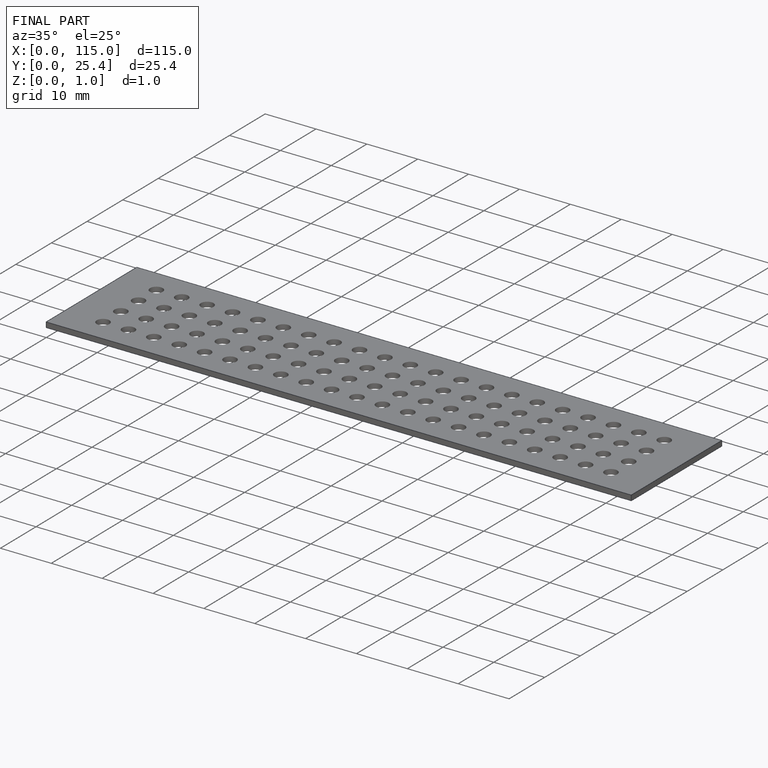
[diagram: finished part — iso view with bounding-box wireframe]
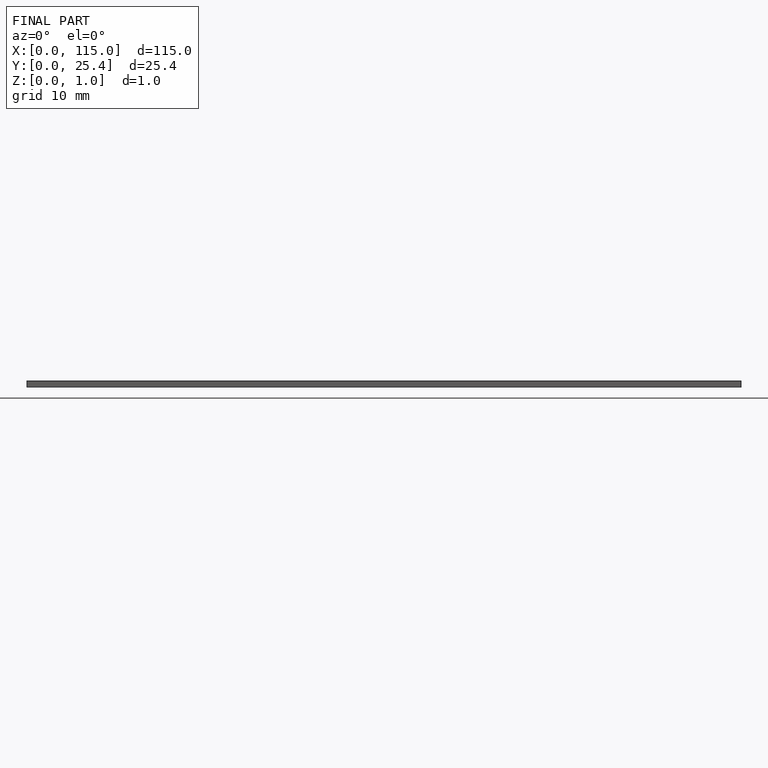
[diagram: finished part — front view with bounding-box wireframe]
